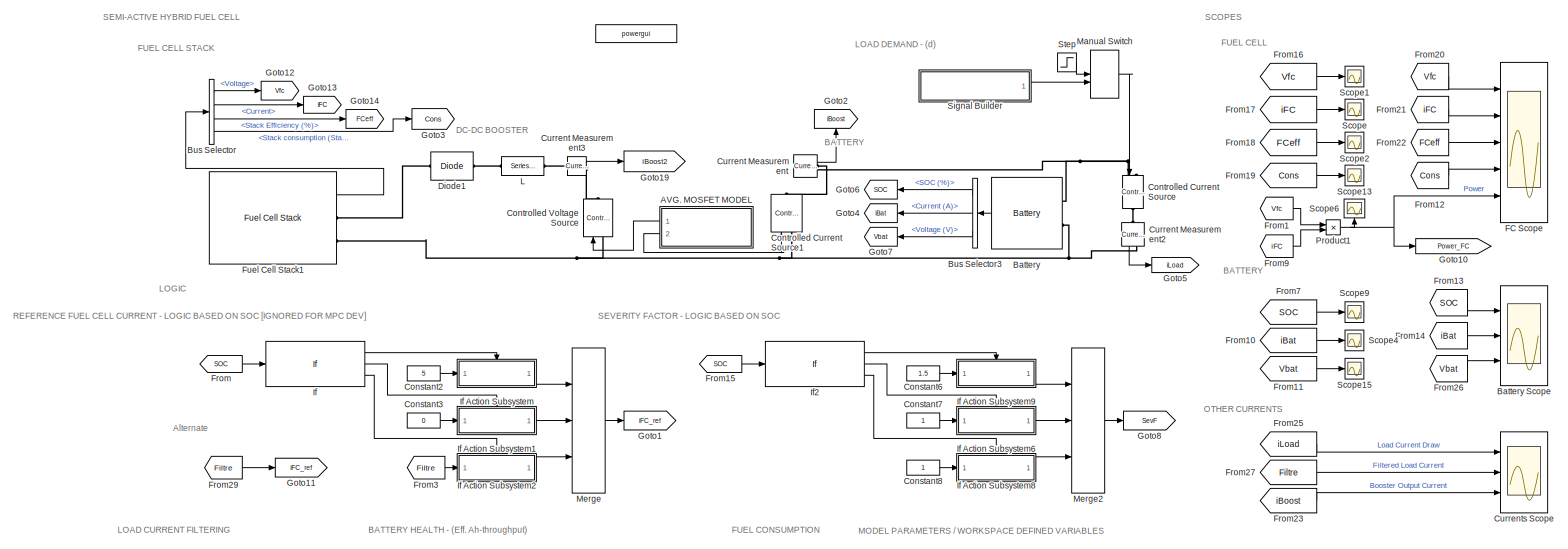
[diagram: root canvas - part 1/3, full width, top band]
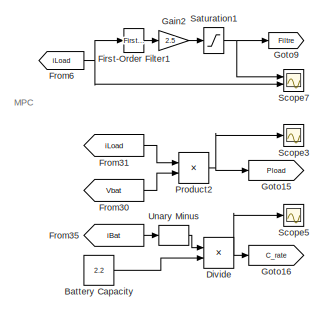
[diagram: root canvas - part 2/3, middle left region]
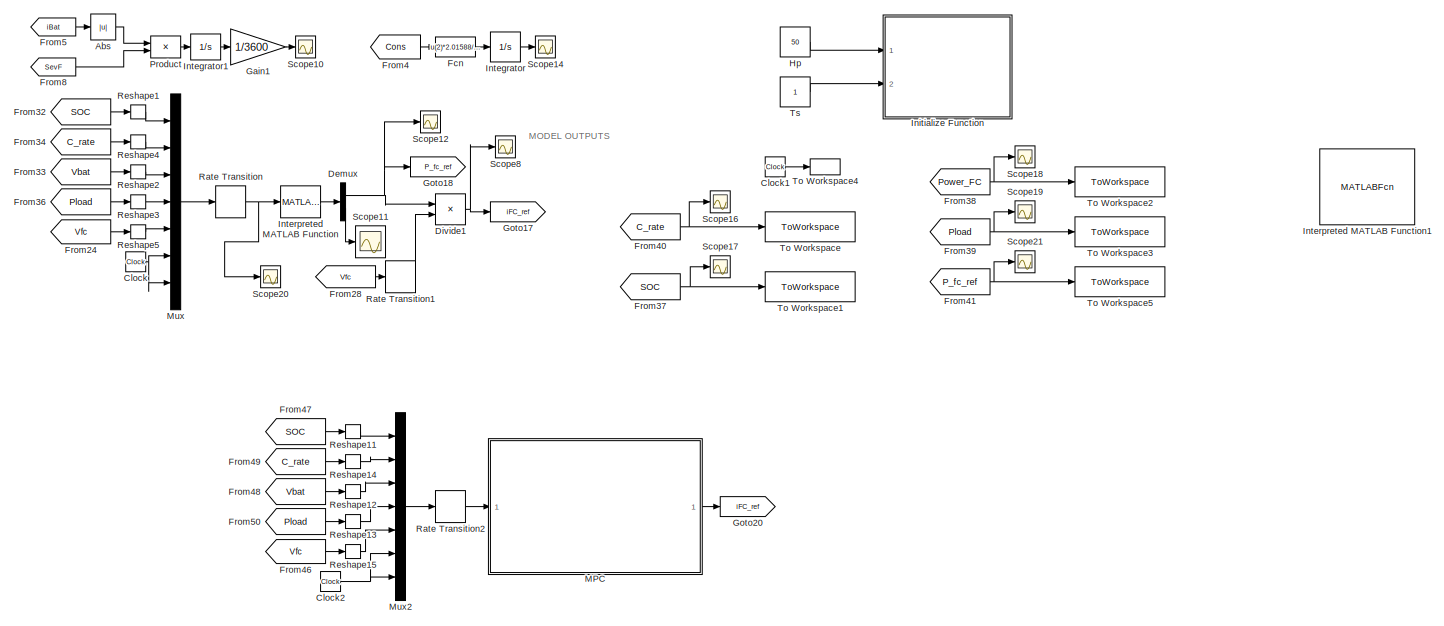
[diagram: root canvas - part 3/3, full width, bottom band]
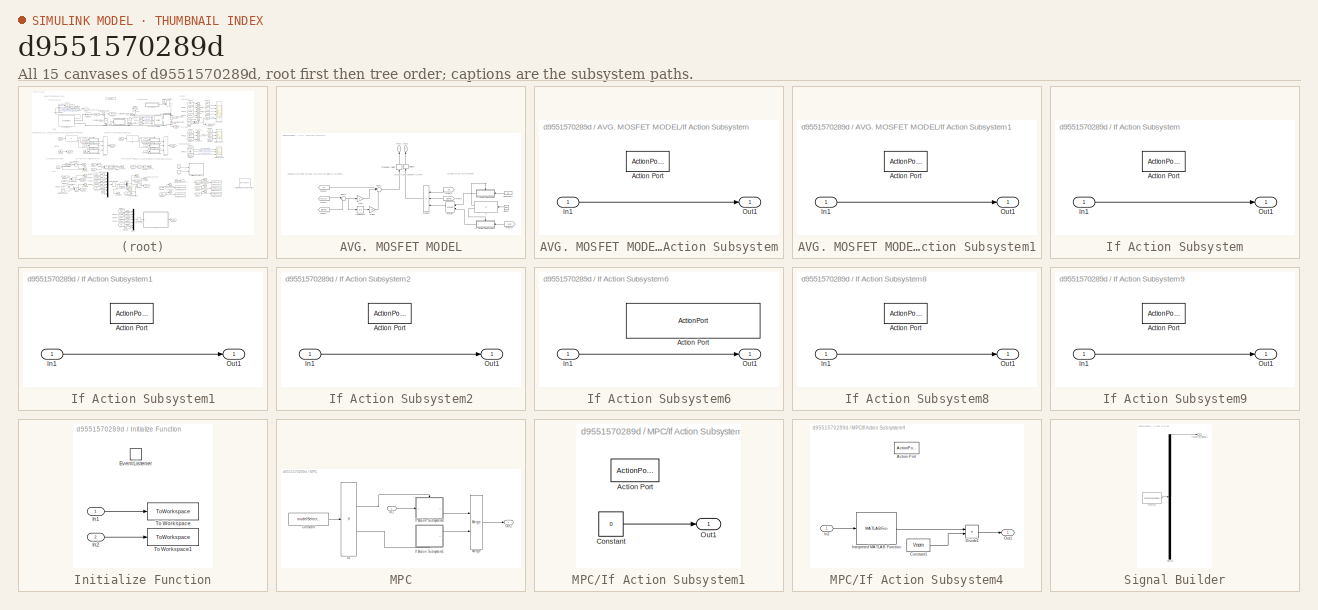
[diagram: thumbnail index - all 15 canvases of the model, root first then tree order]
MODEL slx_d9551570289d
KIND model
CONFIG AbsTol = auto
CONFIG EnableMultiTasking = off
CONFIG FixedStep = auto
CONFIG MaxStep = auto
CONFIG MinStep = auto
CONFIG RelTol = 1e-3
CONFIG SampleTimeConstraint = Unconstrained
CONFIG SolverName = VariableStepAuto
CONFIG StartTime = 0.0
CONFIG StopTime = 500
BLOCK [Reference]    REF=spspowerguiLib/powergui
  Ports = []
  Priority = 1
  SourceBlock = spspowerguiLib/powergui
  SourceProductBaseCode = PS
  SourceType = PSB option menu block
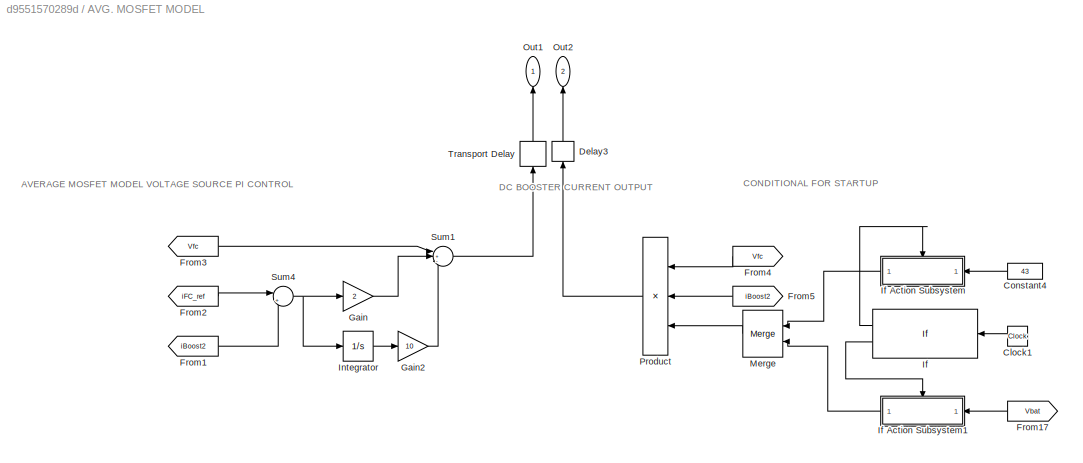
BLOCK [SubSystem] AVG. MOSFET MODEL
  NameLocation = top
  Ports = [0, 2]
  RequestExecContextInheritance = off
BLOCK [Clock] AVG. MOSFET MODEL/Clock1
BLOCK [Constant] AVG. MOSFET MODEL/Constant4
  Value = 43
BLOCK [Delay] AVG. MOSFET MODEL/Delay3
  DelayLength = 1
  InputPortMap = u0
  NameLocation = right
  Ports = [1, 1]
BLOCK [From] AVG. MOSFET MODEL/From1
  GotoTag = iBoost2
  TagVisibility = global
BLOCK [From] AVG. MOSFET MODEL/From17
  GotoTag = Vbat
  TagVisibility = global
BLOCK [From] AVG. MOSFET MODEL/From2
  GotoTag = iFC_ref
  TagVisibility = global
BLOCK [From] AVG. MOSFET MODEL/From3
  GotoTag = Vfc
  TagVisibility = global
BLOCK [From] AVG. MOSFET MODEL/From4
  GotoTag = Vfc
  TagVisibility = global
BLOCK [From] AVG. MOSFET MODEL/From5
  GotoTag = iBoost2
  TagVisibility = global
BLOCK [Gain] AVG. MOSFET MODEL/Gain
  Gain = 2
BLOCK [Gain] AVG. MOSFET MODEL/Gain2
  Gain = 10
BLOCK [If] AVG. MOSFET MODEL/If
  IfExpression = u1 < 0.00001
  Ports = [1, 2]
BLOCK [SubSystem] AVG. MOSFET MODEL/If Action Subsystem
  Ports = [1, 1, 0, 0, 0, 0, 0, 1]
  RequestExecContextInheritance = off
  TreatAsAtomicUnit = on
BLOCK [ActionPort] AVG. MOSFET MODEL/If Action Subsystem/Action Port
  ActionPortLabel = if(u1 < 0.00001)
BLOCK [Inport] AVG. MOSFET MODEL/If Action Subsystem/In1
BLOCK [Outport] AVG. MOSFET MODEL/If Action Subsystem/Out1
BLOCK [SubSystem] AVG. MOSFET MODEL/If Action Subsystem1
  Ports = [1, 1, 0, 0, 0, 0, 0, 1]
  RequestExecContextInheritance = off
  TreatAsAtomicUnit = on
BLOCK [ActionPort] AVG. MOSFET MODEL/If Action Subsystem1/Action Port
  ActionPortLabel = else
BLOCK [Inport] AVG. MOSFET MODEL/If Action Subsystem1/In1
BLOCK [Outport] AVG. MOSFET MODEL/If Action Subsystem1/Out1
BLOCK [Integrator] AVG. MOSFET MODEL/Integrator
  Ports = [1, 1]
BLOCK [Merge] AVG. MOSFET MODEL/Merge
  Ports = [2, 1]
BLOCK [Outport] AVG. MOSFET MODEL/Out1
  NameLocation = right
BLOCK [Outport] AVG. MOSFET MODEL/Out2
  NameLocation = right
  Port = 2
BLOCK [Product] AVG. MOSFET MODEL/Product
  Inputs = **/
  Ports = [3, 1]
BLOCK [Sum] AVG. MOSFET MODEL/Sum1
  Inputs = |+--
  Ports = [3, 1]
BLOCK [Sum] AVG. MOSFET MODEL/Sum4
  Inputs = |+-
  Ports = [2, 1]
BLOCK [TransportDelay] AVG. MOSFET MODEL/Transport Delay
  DelayTime = 0.00000000001
  NameLocation = right
  Ports = [1, 1]
BLOCK [Abs] Abs
  SaturateOnIntegerOverflow = off
BLOCK [Reference] Battery  REF=spsBatteryLib/Battery
  Ports = [0, 1, 0, 0, 0, 2]
  SourceBlock = spsBatteryLib/Battery
  SourceProductBaseCode = PS
  SourceType = Battery
BLOCK [Constant] Battery Capacity
  Value = 2.2
BLOCK [Scope] Battery Scope 
  Floating = off
  NumInputPorts = 3
  Ports = [3]
  ScopeSpecificationString = Simulink.scopes.TimeScopeBlockCfg('CurrentConfiguration', extmgr.ConfigurationSet(extmgr.Configuration('Core','General UI',true,'FigureColor',[1 1 1]),extmgr.Configuration('Core','Source UI',true),extmgr.Configuration('Sources','WiredSimulink',true,'DataLoggingVariableName','ScopeData1'),extmgr.Configuration('Visuals','Time Domain',true,'SerializedDisplays',{struct('MinYLimReal','49.95948','MaxYLi...<+3264ch>
BLOCK [BusSelector] Bus Selector
  OutputSignals = Voltage,Current,Stack Efficiency (%),Stack consumption (Standard lpm) [Air(Yellow); Fuel(Magenta)]
  Ports = [1, 4]
BLOCK [BusSelector] Bus Selector3
  OutputSignals = SOC (%),Current (A),Voltage (V)
  Ports = [1, 3]
BLOCK [Clock] Clock
BLOCK [Clock] Clock1
BLOCK [Clock] Clock2
  Commented = on
BLOCK [Constant] Constant2
  Commented = on
  Value = 5
BLOCK [Constant] Constant3
  Commented = on
  Value = 0
BLOCK [Constant] Constant6
  Value = 1.5
BLOCK [Constant] Constant7
BLOCK [Constant] Constant8
BLOCK [Reference] Controlled Current Source  REF=spsControlledCurrentSourceLib/Controlled Current Source
  NameLocation = left
  Ports = [1, 0, 0, 0, 0, 1, 1]
  SourceBlock = spsControlledCurrentSourceLib/Controlled Current Source
  SourceProductBaseCode = PS
  SourceType = Controlled Current Source
BLOCK [Reference] Controlled Current Source1  REF=spsControlledCurrentSourceLib/Controlled Current Source
  NameLocation = right
  Ports = [1, 0, 0, 0, 0, 1, 1]
  SourceBlock = spsControlledCurrentSourceLib/Controlled Current Source
  SourceProductBaseCode = PS
  SourceType = Controlled Current Source
BLOCK [Reference] Controlled Voltage Source  REF=spsControlledVoltageSourceLib/Controlled Voltage Source
  Ports = [1, 0, 0, 0, 0, 1, 1]
  SourceBlock = spsControlledVoltageSourceLib/Controlled Voltage Source
  SourceProductBaseCode = PS
  SourceType = Controlled Voltage Source
BLOCK [Reference] Current Measurement  REF=spsCurrentMeasurementLib/Current Measurement
  Ports = [0, 1, 0, 0, 0, 1, 1]
  SourceBlock = spsCurrentMeasurementLib/Current Measurement
  SourceProductBaseCode = PS
  SourceType = Current Measurement
  UserDataPersistent = on
BLOCK [Reference] Current Measurement2  REF=spsCurrentMeasurementLib/Current Measurement
  NameLocation = left
  Ports = [0, 1, 0, 0, 0, 1, 1]
  SourceBlock = spsCurrentMeasurementLib/Current Measurement
  SourceProductBaseCode = PS
  SourceType = Current Measurement
  UserDataPersistent = on
BLOCK [Reference] Current Measurement3  REF=spsCurrentMeasurementLib/Current Measurement
  Ports = [0, 1, 0, 0, 0, 1, 1]
  SourceBlock = spsCurrentMeasurementLib/Current Measurement
  SourceProductBaseCode = PS
  SourceType = Current Measurement
  UserDataPersistent = on
BLOCK [Scope] Currents Scope 
  Floating = off
  NumInputPorts = 3
  Ports = [3]
  ScopeSpecificationString = Simulink.scopes.TimeScopeBlockCfg('CurrentConfiguration', extmgr.ConfigurationSet(extmgr.Configuration('Core','General UI',true,'FigureColor',[1 1 1]),extmgr.Configuration('Core','Source UI',true),extmgr.Configuration('Sources','WiredSimulink',true,'DataLoggingVariableName','ScopeData2'),extmgr.Configuration('Visuals','Time Domain',true,'SerializedDisplays',{struct('MinYLimReal','0.5','MaxYLimReal...<+3334ch>
BLOCK [Demux] Demux
  Outputs = 2
  Ports = [1, 2]
BLOCK [Reference] Diode1  REF=spsDiodeLib/Diode
  Ports = [0, 0, 0, 0, 0, 1, 1]
  SourceBlock = spsDiodeLib/Diode
  SourceProductBaseCode = PS
  SourceType = Diode
BLOCK [Product] Divide
  Inputs = */
  Ports = [2, 1]
BLOCK [Product] Divide1
  Inputs = */
  Ports = [2, 1]
BLOCK [Scope] FC Scope
  Floating = off
  NumInputPorts = 5
  Ports = [5]
  ScopeSpecificationString = Simulink.scopes.TimeScopeBlockCfg('CurrentConfiguration', extmgr.ConfigurationSet(extmgr.Configuration('Core','General UI',true,'FigureColor',[1 1 1]),extmgr.Configuration('Core','Source UI',true),extmgr.Configuration('Sources','WiredSimulink',true,'DataLoggingVariableName','ScopeData3'),extmgr.Configuration('Visuals','Time Domain',true,'SerializedDisplays',{struct('MinYLimReal','17.99338','MaxYLi...<+4243ch>
BLOCK [Fcn] Fcn
  Expr = u(2)*2.01588/(23.65*60)
BLOCK [Reference] First-Order Filter1  REF=spsFirstOrderFilterLib/First-Order
Filter
  Ports = [1, 1]
  SourceBlock = spsFirstOrderFilterLib/First-Order\nFilter
  SourceProductBaseCode = PS
  SourceType = First-Order Filter
BLOCK [From] From
  Commented = on
  GotoTag = SOC
BLOCK [From] From1
  GotoTag = Vfc
  TagVisibility = global
BLOCK [From] From10
  GotoTag = iBat
BLOCK [From] From11
  GotoTag = Vbat
  TagVisibility = global
BLOCK [From] From12
  GotoTag = Cons
  TagVisibility = global
BLOCK [From] From13
  GotoTag = SOC
  TagVisibility = global
BLOCK [From] From14
  GotoTag = iBat
BLOCK [From] From15
  GotoTag = SOC
  TagVisibility = global
BLOCK [From] From16
  GotoTag = Vfc
  TagVisibility = global
BLOCK [From] From17
  GotoTag = iFC
  TagVisibility = global
BLOCK [From] From18
  GotoTag = FCeff
  TagVisibility = global
BLOCK [From] From19
  GotoTag = Cons
  TagVisibility = global
BLOCK [From] From20
  GotoTag = Vfc
  TagVisibility = global
BLOCK [From] From21
  GotoTag = iFC
  TagVisibility = global
BLOCK [From] From22
  GotoTag = FCeff
  TagVisibility = global
BLOCK [From] From23
  GotoTag = iBoost
  TagVisibility = global
BLOCK [From] From24
  GotoTag = Vfc
  TagVisibility = global
BLOCK [From] From25
  GotoTag = iLoad
  TagVisibility = global
BLOCK [From] From26
  GotoTag = Vbat
  TagVisibility = global
BLOCK [From] From27
  GotoTag = Filtre
  TagVisibility = global
BLOCK [From] From28
  GotoTag = Vfc
  NameLocation = top
  TagVisibility = global
BLOCK [From] From29
  Commented = on
  GotoTag = Filtre
BLOCK [From] From3
  Commented = on
  GotoTag = Filtre
BLOCK [From] From30
  GotoTag = Vbat
  TagVisibility = global
BLOCK [From] From31
  GotoTag = iLoad
  TagVisibility = global
BLOCK [From] From32
  GotoTag = SOC
  TagVisibility = global
BLOCK [From] From33
  GotoTag = Vbat
  TagVisibility = global
BLOCK [From] From34
  GotoTag = C_rate
  TagVisibility = global
BLOCK [From] From35
  GotoTag = iBat
BLOCK [From] From36
  GotoTag = Pload
  TagVisibility = global
BLOCK [From] From37
  GotoTag = SOC
  TagVisibility = global
BLOCK [From] From38
  GotoTag = Power_FC
  TagVisibility = global
BLOCK [From] From39
  GotoTag = Pload
  TagVisibility = global
BLOCK [From] From4
  GotoTag = Cons
  TagVisibility = global
BLOCK [From] From40
  GotoTag = C_rate
  TagVisibility = global
BLOCK [From] From41
  GotoTag = P_fc_ref
BLOCK [From] From46
  Commented = on
  GotoTag = Vfc
  TagVisibility = global
BLOCK [From] From47
  Commented = on
  GotoTag = SOC
  TagVisibility = global
BLOCK [From] From48
  Commented = on
  GotoTag = Vbat
  TagVisibility = global
BLOCK [From] From49
  Commented = on
  GotoTag = C_rate
  TagVisibility = global
BLOCK [From] From5
  GotoTag = iBat
BLOCK [From] From50
  Commented = on
  GotoTag = Pload
  TagVisibility = global
BLOCK [From] From6
  GotoTag = iLoad
  TagVisibility = global
BLOCK [From] From7
  GotoTag = SOC
  TagVisibility = global
BLOCK [From] From8
  GotoTag = SevF
  TagVisibility = global
BLOCK [From] From9
  GotoTag = iFC
  TagVisibility = global
BLOCK [Reference] Fuel Cell Stack1  REF=spsFuelCellStackLib/Fuel Cell Stack
  Ports = [0, 1, 0, 0, 0, 0, 2]
  SourceBlock = spsFuelCellStackLib/Fuel Cell Stack
  SourceProductBaseCode = PS
  SourceType = Fuel Cell Stack
BLOCK [Gain] Gain1
  Gain = 1/3600
BLOCK [Gain] Gain2
  Gain = 2.5
BLOCK [Goto] Goto1
  Commented = on
  GotoTag = iFC_ref
BLOCK [Goto] Goto10
  GotoTag = Power_FC
  TagVisibility = global
BLOCK [Goto] Goto11
  Commented = on
  GotoTag = iFC_ref
BLOCK [Goto] Goto12
  GotoTag = Vfc
  TagVisibility = global
BLOCK [Goto] Goto13
  GotoTag = iFC
  TagVisibility = global
BLOCK [Goto] Goto14
  GotoTag = FCeff
  TagVisibility = global
BLOCK [Goto] Goto15
  GotoTag = Pload
  TagVisibility = global
BLOCK [Goto] Goto16
  GotoTag = C_rate
  TagVisibility = global
BLOCK [Goto] Goto17
  GotoTag = iFC_ref
  TagVisibility = global
BLOCK [Goto] Goto18
  GotoTag = P_fc_ref
BLOCK [Goto] Goto19
  GotoTag = iBoost2
  TagVisibility = global
BLOCK [Goto] Goto2
  GotoTag = iBoost
  NameLocation = right
  TagVisibility = global
BLOCK [Goto] Goto20
  Commented = on
  GotoTag = iFC_ref
  TagVisibility = global
BLOCK [Goto] Goto3
  GotoTag = Cons
  TagVisibility = global
BLOCK [Goto] Goto4
  GotoTag = iBat
BLOCK [Goto] Goto5
  GotoTag = iLoad
  TagVisibility = global
BLOCK [Goto] Goto6
  GotoTag = SOC
  TagVisibility = global
BLOCK [Goto] Goto7
  GotoTag = Vbat
  TagVisibility = global
BLOCK [Goto] Goto8
  GotoTag = SevF
  TagVisibility = global
BLOCK [Goto] Goto9
  GotoTag = Filtre
  TagVisibility = global
BLOCK [Constant] Hp
  Commented = on
  Value = 50
BLOCK [If] If
  Commented = on
  ElseIfExpressions = u1 > 90
  IfExpression = u1 < 40
  Ports = [1, 3]
BLOCK [SubSystem] If Action Subsystem
  Commented = on
  Ports = [1, 1, 0, 0, 0, 0, 0, 1]
  RequestExecContextInheritance = off
  TreatAsAtomicUnit = on
BLOCK [ActionPort] If Action Subsystem/Action Port
  ActionPortLabel = if(u1 < 40)
BLOCK [Inport] If Action Subsystem/In1
BLOCK [Outport] If Action Subsystem/Out1
BLOCK [SubSystem] If Action Subsystem1
  Commented = on
  Ports = [1, 1, 0, 0, 0, 0, 0, 1]
  RequestExecContextInheritance = off
  TreatAsAtomicUnit = on
BLOCK [ActionPort] If Action Subsystem1/Action Port
  ActionPortLabel = elseif(u1 > 90)
BLOCK [Inport] If Action Subsystem1/In1
BLOCK [Outport] If Action Subsystem1/Out1
BLOCK [SubSystem] If Action Subsystem2
  Commented = on
  Ports = [1, 1, 0, 0, 0, 0, 0, 1]
  RequestExecContextInheritance = off
  TreatAsAtomicUnit = on
BLOCK [ActionPort] If Action Subsystem2/Action Port
  ActionPortLabel = else
BLOCK [Inport] If Action Subsystem2/In1
BLOCK [Outport] If Action Subsystem2/Out1
BLOCK [SubSystem] If Action Subsystem6
  Ports = [1, 1, 0, 0, 0, 0, 0, 1]
  RequestExecContextInheritance = off
  TreatAsAtomicUnit = on
BLOCK [ActionPort] If Action Subsystem6/Action Port
  ActionPortLabel = elseif(u1 > 80)
BLOCK [Inport] If Action Subsystem6/In1
BLOCK [Outport] If Action Subsystem6/Out1
BLOCK [SubSystem] If Action Subsystem8
  Ports = [1, 1, 0, 0, 0, 0, 0, 1]
  RequestExecContextInheritance = off
  TreatAsAtomicUnit = on
BLOCK [ActionPort] If Action Subsystem8/Action Port
  ActionPortLabel = else
BLOCK [Inport] If Action Subsystem8/In1
BLOCK [Outport] If Action Subsystem8/Out1
BLOCK [SubSystem] If Action Subsystem9
  Ports = [1, 1, 0, 0, 0, 0, 0, 1]
  RequestExecContextInheritance = off
  TreatAsAtomicUnit = on
BLOCK [ActionPort] If Action Subsystem9/Action Port
  ActionPortLabel = if(u1 < 40)
BLOCK [Inport] If Action Subsystem9/In1
BLOCK [Outport] If Action Subsystem9/Out1
BLOCK [If] If2
  ElseIfExpressions = u1 > 80
  IfExpression = u1 < 40
  Ports = [1, 3]
BLOCK [SubSystem] Initialize Function
  Commented = on
  Ports = [2]
  RequestExecContextInheritance = off
  TreatAsAtomicUnit = on
BLOCK [EventListener] Initialize Function/Event Listener
  DisableCoverage = on
  EventName = reset
BLOCK [Inport] Initialize Function/In1
BLOCK [Inport] Initialize Function/In2
  Port = 2
BLOCK [ToWorkspace] Initialize Function/To Workspace
  FixptAsFi = on
  MaxDataPoints = inf
  Ports = [1]
  SampleTime = -1
  SaveFormat = Timeseries
  VariableName = Hp
BLOCK [ToWorkspace] Initialize Function/To Workspace1
  FixptAsFi = on
  MaxDataPoints = inf
  Ports = [1]
  SampleTime = -1
  SaveFormat = Timeseries
  VariableName = Ts
BLOCK [Integrator] Integrator
  Ports = [1, 1]
BLOCK [Integrator] Integrator1
  Ports = [1, 1]
BLOCK [MATLABFcn] Interpreted MATLAB Function
  MATLABFcn = linearMPC_old(u(1),u(2),u(3),u(4),u(5),u(6))
  Ports = [1, 1]
BLOCK [MATLABFcn] Interpreted MATLAB Function1
  Commented = on
  MATLABFcn = slow_linearMPC(u(1),u(2),u(3),u(4),u(5),u(6),u(7))
  Ports = [1, 1]
BLOCK [Reference] L  REF=spsSeriesRLCBranchLib/Series RLC Branch
  Ports = [0, 0, 0, 0, 0, 1, 1]
  SourceBlock = spsSeriesRLCBranchLib/Series RLC Branch
  SourceProductBaseCode = PS
  SourceType = Series RLC Branch
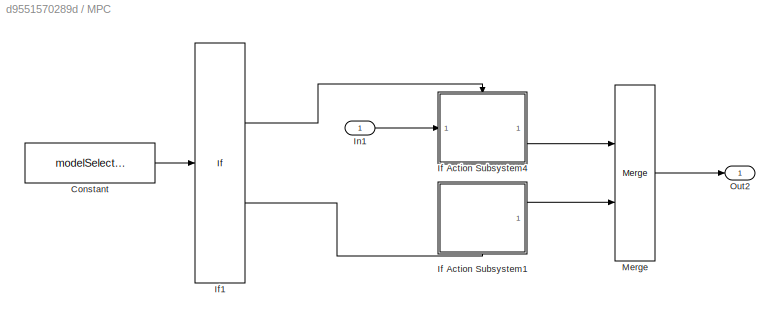
BLOCK [SubSystem] MPC
  Commented = on
  Ports = [1, 1]
  RequestExecContextInheritance = off
BLOCK [Constant] MPC/Constant
  Value = modelSelection
BLOCK [SubSystem] MPC/If Action Subsystem1
  NameLocation = top
  Ports = [0, 1, 0, 0, 0, 0, 0, 1]
  RequestExecContextInheritance = off
  TreatAsAtomicUnit = on
BLOCK [ActionPort] MPC/If Action Subsystem1/Action Port
BLOCK [Constant] MPC/If Action Subsystem1/Constant
  Value = 0
BLOCK [Outport] MPC/If Action Subsystem1/Out1
BLOCK [SubSystem] MPC/If Action Subsystem4
  Ports = [1, 1, 0, 0, 0, 0, 0, 1]
  RequestExecContextInheritance = off
  TreatAsAtomicUnit = on
BLOCK [ActionPort] MPC/If Action Subsystem4/Action Port
BLOCK [Constant] MPC/If Action Subsystem4/Constant1
  Value = Vnom
BLOCK [Product] MPC/If Action Subsystem4/Divide1
  Inputs = */
  Ports = [2, 1]
BLOCK [Inport] MPC/If Action Subsystem4/In2
BLOCK [MATLABFcn] MPC/If Action Subsystem4/Interpreted MATLAB Function
  MATLABFcn = slow_linearMPC(u(1),u(2),u(3),u(4),u(5),u(6),u(7))
  Ports = [1, 1]
BLOCK [Outport] MPC/If Action Subsystem4/Out1
BLOCK [If] MPC/If1
  ElseIfExpressions = u1 == 2
  IfExpression = u1 == 1
  Ports = [1, 2]
  ShowElse = off
BLOCK [Inport] MPC/In1
BLOCK [Merge] MPC/Merge
  Ports = [2, 1]
BLOCK [Outport] MPC/Out2
BLOCK [ManualSwitch] Manual Switch
  CurrentSetting = 0
BLOCK [Merge] Merge
  Commented = on
  Inputs = 3
  Ports = [3, 1]
BLOCK [Merge] Merge2
  Inputs = 3
  Ports = [3, 1]
BLOCK [Mux] Mux
  DisplayOption = bar
  Inputs = 7
  Ports = [7, 1]
BLOCK [Mux] Mux2
  Commented = on
  DisplayOption = bar
  Inputs = 7
  Ports = [7, 1]
BLOCK [Product] Product
  NameLocation = left
  Ports = [2, 1]
BLOCK [Product] Product1
  Ports = [2, 1]
BLOCK [Product] Product2
  Ports = [2, 1]
BLOCK [RateTransition] Rate Transition
  OutPortSampleTime = Ts
BLOCK [RateTransition] Rate Transition1
  OutPortSampleTime = Ts
BLOCK [RateTransition] Rate Transition2
  Commented = on
  OutPortSampleTime = Ts
BLOCK [Reshape] Reshape1
  OutputDimensionality = Customize
  OutputDimensions = 1
  Ports = [1, 1]
BLOCK [Reshape] Reshape11
  Commented = on
  OutputDimensionality = Customize
  OutputDimensions = 1
  Ports = [1, 1]
BLOCK [Reshape] Reshape12
  Commented = on
  OutputDimensionality = Customize
  OutputDimensions = 1
  Ports = [1, 1]
BLOCK [Reshape] Reshape13
  Commented = on
  OutputDimensionality = Customize
  OutputDimensions = 1
  Ports = [1, 1]
BLOCK [Reshape] Reshape14
  Commented = on
  OutputDimensionality = Customize
  OutputDimensions = 1
  Ports = [1, 1]
BLOCK [Reshape] Reshape15
  Commented = on
  OutputDimensionality = Customize
  OutputDimensions = 1
  Ports = [1, 1]
BLOCK [Reshape] Reshape2
  OutputDimensionality = Customize
  OutputDimensions = 1
  Ports = [1, 1]
BLOCK [Reshape] Reshape3
  OutputDimensionality = Customize
  OutputDimensions = 1
  Ports = [1, 1]
BLOCK [Reshape] Reshape4
  OutputDimensionality = Customize
  OutputDimensions = 1
  Ports = [1, 1]
BLOCK [Reshape] Reshape5
  OutputDimensionality = Customize
  OutputDimensions = 1
  Ports = [1, 1]
BLOCK [Saturate] Saturation1
  LowerLimit = 0
  UpperLimit = 5
BLOCK [Scope] Scope
  Floating = off
  NumInputPorts = 1
  Ports = [1]
  ScopeSpecificationString = Simulink.scopes.TimeScopeBlockCfg('CurrentConfiguration', extmgr.ConfigurationSet(extmgr.Configuration('Core','General UI',true),extmgr.Configuration('Core','Source UI',true),extmgr.Configuration('Sources','WiredSimulink',true,'DataLoggingVariableName','ScopeData4','DataLoggingSaveFormat','Array','DataLoggingDecimation','1','DataLoggingDecimateData',true),extmgr.Configuration('Visuals','Time Domai...<+1488ch>
BLOCK [Scope] Scope1
  Floating = off
  NumInputPorts = 1
  Ports = [1]
  ScopeSpecificationString = Simulink.scopes.TimeScopeBlockCfg('CurrentConfiguration', extmgr.ConfigurationSet(extmgr.Configuration('Core','General UI',true),extmgr.Configuration('Core','Source UI',true),extmgr.Configuration('Sources','WiredSimulink',true,'DataLoggingVariableName','ScopeData5','DataLoggingSaveFormat','Array','DataLoggingDecimation','1','DataLoggingDecimateData',true),extmgr.Configuration('Visuals','Time Domai...<+1495ch>
BLOCK [Scope] Scope10
  Floating = off
  NumInputPorts = 1
  Ports = [1]
  ScopeSpecificationString = Simulink.scopes.TimeScopeBlockCfg('CurrentConfiguration', extmgr.ConfigurationSet(extmgr.Configuration('Core','General UI',true,'FigureColor',[1 1 1]),extmgr.Configuration('Core','Source UI',true),extmgr.Configuration('Sources','WiredSimulink',true,'DataLoggingVariableName','ScopeData6'),extmgr.Configuration('Visuals','Time Domain',true,'SerializedDisplays',{struct('MinYLimReal','-0.00151','MaxYLi...<+1665ch>
BLOCK [Scope] Scope11
  Floating = off
  NumInputPorts = 1
  Ports = [1]
  ScopeSpecificationString = Simulink.scopes.TimeScopeBlockCfg('CurrentConfiguration', extmgr.ConfigurationSet(extmgr.Configuration('Core','General UI',true),extmgr.Configuration('Core','Source UI',true),extmgr.Configuration('Sources','WiredSimulink',true,'DataLoggingVariableName','ScopeData1'),extmgr.Configuration('Visuals','Time Domain',true),extmgr.Configuration('Tools','Plot Navigation',true),extmgr.Configuration('Tools',...<+40ch>
BLOCK [Scope] Scope12
  Floating = off
  NumInputPorts = 1
  Ports = [1]
  ScopeSpecificationString = Simulink.scopes.TimeScopeBlockCfg('CurrentConfiguration', extmgr.ConfigurationSet(extmgr.Configuration('Core','General UI',true,'FigureColor',[1 1 1]),extmgr.Configuration('Core','Source UI',true),extmgr.Configuration('Sources','WiredSimulink',true,'DataLoggingVariableName','ScopeData8'),extmgr.Configuration('Visuals','Time Domain',true,'SerializedDisplays',{struct('MinYLimReal','19.34975','MaxYLi...<+1671ch>
BLOCK [Scope] Scope13
  Floating = off
  NumInputPorts = 1
  Ports = [1]
  ScopeSpecificationString = Simulink.scopes.TimeScopeBlockCfg('CurrentConfiguration', extmgr.ConfigurationSet(extmgr.Configuration('Core','General UI',true),extmgr.Configuration('Core','Source UI',true),extmgr.Configuration('Sources','WiredSimulink',true,'DataLoggingVariableName','ScopeData9','DataLoggingSaveFormat','Array','DataLoggingDecimation','1','DataLoggingDecimateData',true),extmgr.Configuration('Visuals','Time Domai...<+1583ch>
BLOCK [Scope] Scope14
  Floating = off
  NumInputPorts = 1
  Ports = [1]
  ScopeSpecificationString = Simulink.scopes.TimeScopeBlockCfg('CurrentConfiguration', extmgr.ConfigurationSet(extmgr.Configuration('Core','General UI',true,'FigureColor',[1 1 1]),extmgr.Configuration('Core','Source UI',true),extmgr.Configuration('Sources','WiredSimulink',true,'DataLoggingVariableName','ScopeData10'),extmgr.Configuration('Visuals','Time Domain',true,'SerializedDisplays',{struct('MinYLimReal','-0.00409','MaxYL...<+1678ch>
BLOCK [Scope] Scope15
  Floating = off
  NumInputPorts = 1
  Ports = [1]
  ScopeSpecificationString = Simulink.scopes.TimeScopeBlockCfg('CurrentConfiguration', extmgr.ConfigurationSet(extmgr.Configuration('Core','General UI',true),extmgr.Configuration('Core','Source UI',true),extmgr.Configuration('Sources','WiredSimulink',true,'DataLoggingVariableName','ScopeData11','DataLoggingSaveFormat','Array','DataLoggingDecimation','1','DataLoggingDecimateData',true),extmgr.Configuration('Visuals','Time Doma...<+1468ch>
BLOCK [Scope] Scope16
  Floating = off
  NumInputPorts = 1
  Ports = [1]
  ScopeSpecificationString = Simulink.scopes.TimeScopeBlockCfg('CurrentConfiguration', extmgr.ConfigurationSet(extmgr.Configuration('Core','General UI',true),extmgr.Configuration('Core','Source UI',true),extmgr.Configuration('Sources','WiredSimulink',true,'DataLoggingVariableName','ScopeData12','DataLoggingSaveFormat','Array','DataLoggingDecimation','1','DataLoggingDecimateData',true),extmgr.Configuration('Visuals','Time Doma...<+1505ch>
BLOCK [Scope] Scope17
  Floating = off
  NumInputPorts = 1
  Ports = [1]
  ScopeSpecificationString = Simulink.scopes.TimeScopeBlockCfg('CurrentConfiguration', extmgr.ConfigurationSet(extmgr.Configuration('Core','General UI',true),extmgr.Configuration('Core','Source UI',true),extmgr.Configuration('Sources','WiredSimulink',true,'DataLoggingVariableName','ScopeData13','DataLoggingSaveFormat','Array','DataLoggingDecimation','1','DataLoggingDecimateData',true),extmgr.Configuration('Visuals','Time Doma...<+1505ch>
BLOCK [Scope] Scope18
  Floating = off
  NumInputPorts = 1
  Ports = [1]
  ScopeSpecificationString = Simulink.scopes.TimeScopeBlockCfg('CurrentConfiguration', extmgr.ConfigurationSet(extmgr.Configuration('Core','General UI',true),extmgr.Configuration('Core','Source UI',true),extmgr.Configuration('Sources','WiredSimulink',true,'DataLoggingVariableName','ScopeData14','DataLoggingSaveFormat','Array','DataLoggingDecimation','1','DataLoggingDecimateData',true),extmgr.Configuration('Visuals','Time Doma...<+1508ch>
BLOCK [Scope] Scope19
  Floating = off
  NumInputPorts = 1
  Ports = [1]
  ScopeSpecificationString = Simulink.scopes.TimeScopeBlockCfg('CurrentConfiguration', extmgr.ConfigurationSet(extmgr.Configuration('Core','General UI',true),extmgr.Configuration('Core','Source UI',true),extmgr.Configuration('Sources','WiredSimulink',true,'DataLoggingVariableName','ScopeData15','DataLoggingSaveFormat','Array','DataLoggingDecimation','1','DataLoggingDecimateData',true),extmgr.Configuration('Visuals','Time Doma...<+1505ch>
BLOCK [Scope] Scope2
  Floating = off
  NumInputPorts = 1
  Ports = [1]
  ScopeSpecificationString = Simulink.scopes.TimeScopeBlockCfg('CurrentConfiguration', extmgr.ConfigurationSet(extmgr.Configuration('Core','General UI',true),extmgr.Configuration('Core','Source UI',true),extmgr.Configuration('Sources','WiredSimulink',true,'DataLoggingVariableName','ScopeData16','DataLoggingSaveFormat','Array','DataLoggingDecimation','1','DataLoggingDecimateData',true),extmgr.Configuration('Visuals','Time Doma...<+1459ch>
BLOCK [Scope] Scope20
  Floating = off
  NumInputPorts = 1
  Ports = [1]
  ScopeSpecificationString = Simulink.scopes.TimeScopeBlockCfg('CurrentConfiguration', extmgr.ConfigurationSet(extmgr.Configuration('Core','General UI',true,'FigureColor',[1 1 1]),extmgr.Configuration('Core','Source UI',true),extmgr.Configuration('Sources','WiredSimulink',true,'DataLoggingVariableName','ScopeData17'),extmgr.Configuration('Visuals','Time Domain',true,'SerializedDisplays',{struct('MinYLimReal','-127.76923','Max...<+1801ch>
BLOCK [Scope] Scope21
  Floating = off
  NumInputPorts = 1
  Ports = [1]
  ScopeSpecificationString = Simulink.scopes.TimeScopeBlockCfg('CurrentConfiguration', extmgr.ConfigurationSet(extmgr.Configuration('Core','General UI',true),extmgr.Configuration('Core','Source UI',true),extmgr.Configuration('Sources','WiredSimulink',true,'DataLoggingVariableName','ScopeData18','DataLoggingSaveFormat','Array','DataLoggingDecimation','1','DataLoggingDecimateData',true),extmgr.Configuration('Visuals','Time Doma...<+1505ch>
BLOCK [Scope] Scope3
  Floating = off
  NumInputPorts = 1
  Ports = [1]
  ScopeSpecificationString = Simulink.scopes.TimeScopeBlockCfg('CurrentConfiguration', extmgr.ConfigurationSet(extmgr.Configuration('Core','General UI',true),extmgr.Configuration('Core','Source UI',true),extmgr.Configuration('Sources','WiredSimulink',true,'DataLoggingVariableName','ScopeData19','DataLoggingSaveFormat','Array','DataLoggingDecimation','1','DataLoggingDecimateData',true),extmgr.Configuration('Visuals','Time Doma...<+1493ch>
BLOCK [Scope] Scope4
  Floating = off
  NumInputPorts = 1
  Ports = [1]
  ScopeSpecificationString = Simulink.scopes.TimeScopeBlockCfg('CurrentConfiguration', extmgr.ConfigurationSet(extmgr.Configuration('Core','General UI',true),extmgr.Configuration('Core','Source UI',true),extmgr.Configuration('Sources','WiredSimulink',true,'DataLoggingVariableName','ScopeData20','DataLoggingSaveFormat','Array','DataLoggingDecimation','1','DataLoggingDecimateData',true),extmgr.Configuration('Visuals','Time Doma...<+1517ch>
BLOCK [Scope] Scope5
  Floating = off
  NumInputPorts = 1
  Ports = [1]
  ScopeSpecificationString = Simulink.scopes.TimeScopeBlockCfg('CurrentConfiguration', extmgr.ConfigurationSet(extmgr.Configuration('Core','General UI',true),extmgr.Configuration('Core','Source UI',true),extmgr.Configuration('Sources','WiredSimulink',true,'DataLoggingVariableName','ScopeData21','DataLoggingSaveFormat','Array','DataLoggingDecimation','1','DataLoggingDecimateData',true),extmgr.Configuration('Visuals','Time Doma...<+1505ch>
BLOCK [Scope] Scope6
  Floating = off
  NameLocation = right
  NumInputPorts = 1
  Ports = [1]
  ScopeSpecificationString = Simulink.scopes.TimeScopeBlockCfg('CurrentConfiguration', extmgr.ConfigurationSet(extmgr.Configuration('Core','General UI',true),extmgr.Configuration('Core','Source UI',true),extmgr.Configuration('Sources','WiredSimulink',true,'DataLoggingVariableName','ScopeData22','DataLoggingSaveFormat','Array','DataLoggingDecimation','1','DataLoggingDecimateData',true),extmgr.Configuration('Visuals','Time Doma...<+1490ch>
BLOCK [Scope] Scope7
  Floating = off
  NumInputPorts = 2
  Ports = [2]
  ScopeSpecificationString = Simulink.scopes.TimeScopeBlockCfg('CurrentConfiguration', extmgr.ConfigurationSet(extmgr.Configuration('Core','General UI',true,'FigureColor',[1 1 1]),extmgr.Configuration('Core','Source UI',true),extmgr.Configuration('Sources','WiredSimulink',true,'DataLoggingVariableName','ScopeData23'),extmgr.Configuration('Visuals','Time Domain',true,'SerializedDisplays',{struct('MinYLimReal','-1.9291','MaxYLi...<+1957ch>
BLOCK [Scope] Scope8
  Floating = off
  NumInputPorts = 1
  Ports = [1]
  ScopeSpecificationString = Simulink.scopes.TimeScopeBlockCfg('CurrentConfiguration', extmgr.ConfigurationSet(extmgr.Configuration('Core','General UI',true,'FigureColor',[1 1 1]),extmgr.Configuration('Core','Source UI',true),extmgr.Configuration('Sources','WiredSimulink',true,'DataLoggingVariableName','ScopeData24'),extmgr.Configuration('Visuals','Time Domain',true,'SerializedDisplays',{struct('MinYLimReal','-0.22279','MaxYL...<+1644ch>
BLOCK [Scope] Scope9
  Floating = off
  NumInputPorts = 1
  Ports = [1]
  ScopeSpecificationString = Simulink.scopes.TimeScopeBlockCfg('CurrentConfiguration', extmgr.ConfigurationSet(extmgr.Configuration('Core','General UI',true),extmgr.Configuration('Core','Source UI',true),extmgr.Configuration('Sources','WiredSimulink',true,'DataLoggingSaveFormat','Array','DataLoggingDecimation','1','DataLoggingDecimateData',true),extmgr.Configuration('Visuals','Time Domain',true,'SerializedDisplays',{struct('M...<+1451ch>
BLOCK [SubSystem] Signal Builder
  ClipboardFcn = sigbuilder_block('clipboard');
  CloseFcn = sigbuilder_block('close');
  ContinueFcn = sigbuilder_block('continue');
  CopyFcn = sigbuilder_block('copy');
  DeleteFcn = sigbuilder_block('delete');
  LoadFcn = sigbuilder_block('load');
  MaskHideContents = on
  ModelCloseFcn = sigbuilder_block('modelClose');
  NameChangeFcn = sigbuilder_block('namechange');
  OpenFcn = sigbuilder_block('open',[214 20 1706 550 ]);
  PauseFcn = sigbuilder_block('pause');
  Ports = [0, 1]
  PreSaveFcn = sigbuilder_block('preSave');
  RequestExecContextInheritance = off
  StartFcn = sigbuilder_block('start');
  StopFcn = sigbuilder_block('stop');
  Tag = STV Subsys
BLOCK [Demux] Signal Builder/Demux
  DisplayOption = none
  Outputs = 1
  Ports = [1, 1]
  Tag = STV Demux
BLOCK [FromWorkspace] Signal Builder/FromWs
  Tag = STV FromWs
  VariableName = tuvar
BLOCK [Outport] Signal Builder/Imported_Signal 1
  Tag = STV Outport
BLOCK [Step] Step
  After = 0.6
  SampleTime = 0
  Time = 0
BLOCK [ToWorkspace] To Workspace
  FixptAsFi = on
  MaxDataPoints = inf
  Ports = [1]
  SampleTime = -1
  SaveFormat = Timeseries
  VariableName = C_rate_hist
BLOCK [ToWorkspace] To Workspace1
  FixptAsFi = on
  MaxDataPoints = inf
  Ports = [1]
  SampleTime = -1
  SaveFormat = Timeseries
  VariableName = SOC_hist
BLOCK [ToWorkspace] To Workspace2
  FixptAsFi = on
  MaxDataPoints = inf
  Ports = [1]
  SampleTime = -1
  SaveFormat = Timeseries
  VariableName = P_fc_hist
BLOCK [ToWorkspace] To Workspace3
  FixptAsFi = on
  MaxDataPoints = inf
  Ports = [1]
  SampleTime = -1
  SaveFormat = Timeseries
  VariableName = P_load_hist
BLOCK [ToWorkspace] To Workspace4
  FixptAsFi = on
  MaxDataPoints = inf
  Ports = [1]
  SampleTime = -1
  SaveFormat = Timeseries
  VariableName = time
BLOCK [ToWorkspace] To Workspace5
  FixptAsFi = on
  MaxDataPoints = inf
  Ports = [1]
  SampleTime = -1
  SaveFormat = Timeseries
  VariableName = P_fc_ref_hist
BLOCK [Constant] Ts
  Commented = on
BLOCK [UnaryMinus] Unary Minus
ANNOTATION (root): Alternate
ANNOTATION (root): BATTERY
ANNOTATION (root): BATTERY HEALTH - (Eff. Ah-throughput)
ANNOTATION (root): DC-DC BOOSTER
ANNOTATION (root): FUEL CELL
ANNOTATION (root): FUEL CELL STACK
ANNOTATION (root): FUEL CONSUMPTION
ANNOTATION (root): LOAD CURRENT FILTERING
ANNOTATION (root): LOAD DEMAND - (d)
ANNOTATION (root): LOGIC
ANNOTATION (root): MODEL OUTPUTS
ANNOTATION (root): MODEL PARAMETERS / WORKSPACE DEFINED VARIABLES
ANNOTATION (root): MPC
ANNOTATION (root): OTHER CURRENTS
ANNOTATION (root): REFERENCE FUEL CELL CURRENT - LOGIC BASED ON SOC [IGNORED FOR MPC DEV]
ANNOTATION (root): SCOPES
ANNOTATION (root): SEMI-ACTIVE HYBRID FUEL CELL
ANNOTATION (root): SEVERITY FACTOR - LOGIC BASED ON SOC
ANNOTATION AVG. MOSFET MODEL: AVERAGE MOSFET MODEL VOLTAGE SOURCE PI CONTROL
ANNOTATION AVG. MOSFET MODEL: CONDITIONAL FOR STARTUP
ANNOTATION AVG. MOSFET MODEL: DC BOOSTER CURRENT OUTPUT
LINE AVG. MOSFET MODEL/Clock1:1 -> AVG. MOSFET MODEL/If:1
LINE AVG. MOSFET MODEL/Constant4:1 -> AVG. MOSFET MODEL/If Action Subsystem:1
LINE AVG. MOSFET MODEL/Delay3:1 -> AVG. MOSFET MODEL/Out2:1
LINE AVG. MOSFET MODEL/From17:1 -> AVG. MOSFET MODEL/If Action Subsystem1:1
LINE AVG. MOSFET MODEL/From1:1 -> AVG. MOSFET MODEL/Sum4:2
LINE AVG. MOSFET MODEL/From2:1 -> AVG. MOSFET MODEL/Sum4:1
LINE AVG. MOSFET MODEL/From3:1 -> AVG. MOSFET MODEL/Sum1:1
LINE AVG. MOSFET MODEL/From4:1 -> AVG. MOSFET MODEL/Product:1
LINE AVG. MOSFET MODEL/From5:1 -> AVG. MOSFET MODEL/Product:2
LINE AVG. MOSFET MODEL/Gain2:1 -> AVG. MOSFET MODEL/Sum1:3
LINE AVG. MOSFET MODEL/Gain:1 -> AVG. MOSFET MODEL/Sum1:2
LINE AVG. MOSFET MODEL/If Action Subsystem/In1:1 -> AVG. MOSFET MODEL/If Action Subsystem/Out1:1
LINE AVG. MOSFET MODEL/If Action Subsystem1/In1:1 -> AVG. MOSFET MODEL/If Action Subsystem1/Out1:1
LINE AVG. MOSFET MODEL/If Action Subsystem1:1 -> AVG. MOSFET MODEL/Merge:2
LINE AVG. MOSFET MODEL/If Action Subsystem:1 -> AVG. MOSFET MODEL/Merge:1
LINE AVG. MOSFET MODEL/If:1 -> AVG. MOSFET MODEL/If Action Subsystem:ifaction
LINE AVG. MOSFET MODEL/If:2 -> AVG. MOSFET MODEL/If Action Subsystem1:ifaction
LINE AVG. MOSFET MODEL/Integrator:1 -> AVG. MOSFET MODEL/Gain2:1
LINE AVG. MOSFET MODEL/Merge:1 -> AVG. MOSFET MODEL/Product:3
LINE AVG. MOSFET MODEL/Product:1 -> AVG. MOSFET MODEL/Delay3:1
LINE AVG. MOSFET MODEL/Sum1:1 -> AVG. MOSFET MODEL/Transport Delay:1
NET AVG. MOSFET MODEL/Sum4:1 -> AVG. MOSFET MODEL/Gain:1, AVG. MOSFET MODEL/Integrator:1
LINE AVG. MOSFET MODEL/Transport Delay:1 -> AVG. MOSFET MODEL/Out1:1
LINE AVG. MOSFET MODEL:1 -> Controlled Voltage Source:1
LINE AVG. MOSFET MODEL:2 -> Controlled Current Source1:1
LINE Abs:1 -> Product:1
LINE Battery Capacity:1 -> Divide:2
LINE Battery:1 -> Bus Selector3:1
LINE Bus Selector3:1 -> Goto6:1
LINE Bus Selector3:2 -> Goto4:1
LINE Bus Selector3:3 -> Goto7:1
LINE Bus Selector:1 -> Goto12:1
LINE Bus Selector:2 -> Goto13:1
LINE Bus Selector:3 -> Goto14:1
LINE Bus Selector:4 -> Goto3:1
LINE Clock1:1 -> To Workspace4:1
NET Clock2:1 -> Mux2:6, Mux2:7
NET Clock:1 -> Mux:6, Mux:7
LINE Constant2:1 -> If Action Subsystem:1
LINE Constant3:1 -> If Action Subsystem1:1
LINE Constant6:1 -> If Action Subsystem9:1
LINE Constant7:1 -> If Action Subsystem6:1
LINE Constant8:1 -> If Action Subsystem8:1
LINE Current Measurement2:1 -> Goto5:1
LINE Current Measurement3:1 -> Goto19:1
LINE Current Measurement:1 -> Goto2:1
NET Demux:1 -> Divide1:1, Goto18:1, Scope12:1
LINE Demux:2 -> Scope11:1
NET Divide1:1 -> Goto17:1, Scope8:1
NET Divide:1 -> Goto16:1, Scope5:1
LINE Fcn:1 -> Integrator:1
LINE First-Order Filter1:1 -> Gain2:1
LINE From10:1 -> Scope4:1
LINE From11:1 -> Scope15:1
LINE From12:1 -> FC Scope:4
LINE From13:1 -> Battery Scope :1
LINE From14:1 -> Battery Scope :2
LINE From15:1 -> If2:1
LINE From16:1 -> Scope1:1
LINE From17:1 -> Scope:1
LINE From18:1 -> Scope2:1
LINE From19:1 -> Scope13:1
LINE From1:1 -> Product1:1
LINE From20:1 -> FC Scope:1
LINE From21:1 -> FC Scope:2
LINE From22:1 -> FC Scope:3
LINE From23:1 -> Currents Scope :3
LINE From24:1 -> Reshape5:1
LINE From25:1 -> Currents Scope :1
LINE From26:1 -> Battery Scope :3
LINE From27:1 -> Currents Scope :2
LINE From28:1 -> Rate Transition1:1
LINE From29:1 -> Goto11:1
LINE From30:1 -> Product2:2
LINE From31:1 -> Product2:1
LINE From32:1 -> Reshape1:1
LINE From33:1 -> Reshape2:1
LINE From34:1 -> Reshape4:1
LINE From35:1 -> Unary Minus:1
LINE From36:1 -> Reshape3:1
NET From37:1 -> Scope17:1, To Workspace1:1
NET From38:1 -> Scope18:1, To Workspace2:1
NET From39:1 -> Scope19:1, To Workspace3:1
LINE From3:1 -> If Action Subsystem2:1
NET From40:1 -> Scope16:1, To Workspace:1
NET From41:1 -> Scope21:1, To Workspace5:1
LINE From46:1 -> Reshape15:1
LINE From47:1 -> Reshape11:1
LINE From48:1 -> Reshape12:1
LINE From49:1 -> Reshape14:1
LINE From4:1 -> Fcn:1
LINE From50:1 -> Reshape13:1
LINE From5:1 -> Abs:1
NET From6:1 -> First-Order Filter1:1, Scope7:2
LINE From7:1 -> Scope9:1
LINE From8:1 -> Product:2
LINE From9:1 -> Product1:2
LINE From:1 -> If:1
LINE Fuel Cell Stack1:1 -> Bus Selector:1
LINE Gain1:1 -> Scope10:1
LINE Gain2:1 -> Saturation1:1
LINE Hp:1 -> Initialize Function:1
LINE If Action Subsystem/In1:1 -> If Action Subsystem/Out1:1
LINE If Action Subsystem1/In1:1 -> If Action Subsystem1/Out1:1
LINE If Action Subsystem1:1 -> Merge:2
LINE If Action Subsystem2/In1:1 -> If Action Subsystem2/Out1:1
LINE If Action Subsystem2:1 -> Merge:3
LINE If Action Subsystem6/In1:1 -> If Action Subsystem6/Out1:1
LINE If Action Subsystem6:1 -> Merge2:2
LINE If Action Subsystem8/In1:1 -> If Action Subsystem8/Out1:1
LINE If Action Subsystem8:1 -> Merge2:3
LINE If Action Subsystem9/In1:1 -> If Action Subsystem9/Out1:1
LINE If Action Subsystem9:1 -> Merge2:1
LINE If Action Subsystem:1 -> Merge:1
LINE If2:1 -> If Action Subsystem9:ifaction
LINE If2:2 -> If Action Subsystem6:ifaction
LINE If2:3 -> If Action Subsystem8:ifaction
LINE If:1 -> If Action Subsystem:ifaction
LINE If:2 -> If Action Subsystem1:ifaction
LINE If:3 -> If Action Subsystem2:ifaction
LINE Initialize Function/In1:1 -> Initialize Function/To Workspace:1
LINE Initialize Function/In2:1 -> Initialize Function/To Workspace1:1
LINE Integrator1:1 -> Gain1:1
LINE Integrator:1 -> Scope14:1
LINE Interpreted MATLAB Function:1 -> Demux:1
LINE MPC/Constant:1 -> MPC/If1:1
LINE MPC/If Action Subsystem1/Constant:1 -> MPC/If Action Subsystem1/Out1:1
LINE MPC/If Action Subsystem1:1 -> MPC/Merge:2
LINE MPC/If Action Subsystem4/Constant1:1 -> MPC/If Action Subsystem4/Divide1:2
LINE MPC/If Action Subsystem4/Divide1:1 -> MPC/If Action Subsystem4/Out1:1
LINE MPC/If Action Subsystem4/In2:1 -> MPC/If Action Subsystem4/Interpreted MATLAB Function:1
LINE MPC/If Action Subsystem4/Interpreted MATLAB Function:1 -> MPC/If Action Subsystem4/Divide1:1
LINE MPC/If Action Subsystem4:1 -> MPC/Merge:1
LINE MPC/If1:1 -> MPC/If Action Subsystem4:ifaction
LINE MPC/If1:2 -> MPC/If Action Subsystem1:ifaction
LINE MPC/In1:1 -> MPC/If Action Subsystem4:1
LINE MPC/Merge:1 -> MPC/Out2:1
LINE MPC:1 -> Goto20:1
LINE Manual Switch:1 -> Controlled Current Source:1
LINE Merge2:1 -> Goto8:1
LINE Merge:1 -> Goto1:1
LINE Mux2:1 -> Rate Transition2:1
LINE Mux:1 -> Rate Transition:1
NET Product1:1 -> FC Scope:5, Goto10:1, Scope6:1
NET Product2:1 -> Goto15:1, Scope3:1
LINE Product:1 -> Integrator1:1
LINE Rate Transition1:1 -> Divide1:2
LINE Rate Transition2:1 -> MPC:1
NET Rate Transition:1 -> Interpreted MATLAB Function:1, Scope20:1
LINE Reshape11:1 -> Mux2:1
LINE Reshape12:1 -> Mux2:3
LINE Reshape13:1 -> Mux2:4
LINE Reshape14:1 -> Mux2:2
LINE Reshape15:1 -> Mux2:5
LINE Reshape1:1 -> Mux:1
LINE Reshape2:1 -> Mux:3
LINE Reshape3:1 -> Mux:4
LINE Reshape4:1 -> Mux:2
LINE Reshape5:1 -> Mux:5
NET Saturation1:1 -> Goto9:1, Scope7:1
LINE Signal Builder:1 -> Manual Switch:2
LINE Step:1 -> Manual Switch:1
LINE Ts:1 -> Initialize Function:2
LINE Unary Minus:1 -> Divide:1
PNET net1: Battery:LConn1 -- Controlled Current Source:LConn1 -- Current Measurement:RConn1
PNET net2: Battery:LConn2 -- Controlled Current Source1:LConn1 -- Controlled Voltage Source:LConn1 -- Current Measurement2:RConn1 -- Fuel Cell Stack1:RConn2
PLINE Controlled Current Source1:RConn1 -- Current Measurement:LConn1
PLINE Controlled Current Source:RConn1 -- Current Measurement2:LConn1
PLINE Controlled Voltage Source:RConn1 -- Current Measurement3:RConn1
PLINE Current Measurement3:LConn1 -- L:RConn1
PLINE Diode1:LConn1 -- Fuel Cell Stack1:RConn1
PLINE Diode1:RConn1 -- L:LConn1
note: NET lines group one-source signal fan-out (src -> all destinations, sorted); 1:1 wires keep LINE; PNET lines group multi-terminal physical nets as a canonical sorted terminal list (undirected conserving connections); 2-terminal nets keep the pairwise PLINE form
